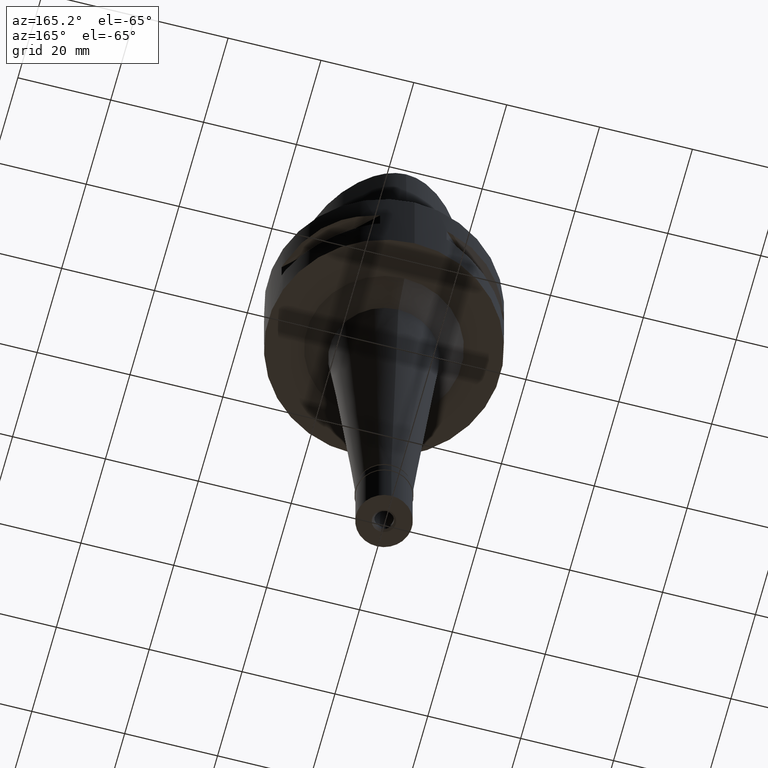
[diagram: clean part render]
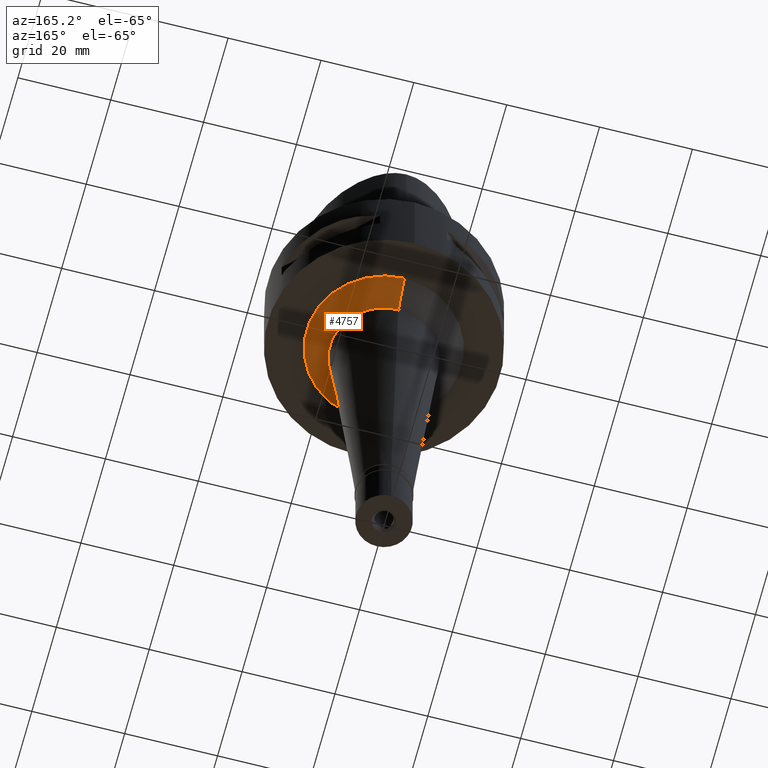
[diagram: same view with one face highlighted and labeled with its STEP entity id]
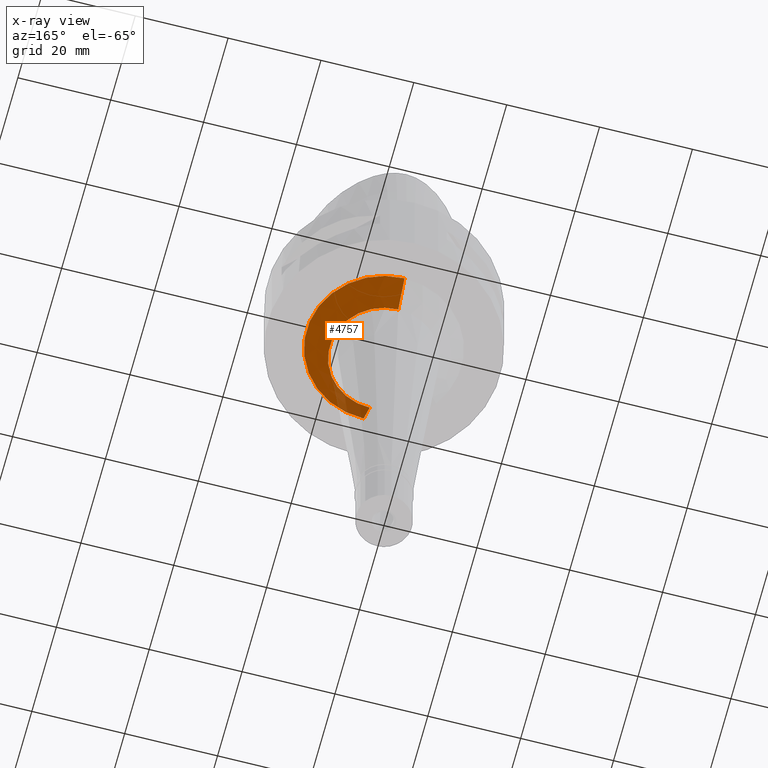
[diagram: x-ray of the same camera — body ghosted, the highlighted face saturated]
A machine part, auxiliary view. The second image highlights one B-rep face of the part: STEP entity #4757.
The next image is the same camera in x-ray: the body ghosted, the highlighted face saturated — about 10% of this face is hidden behind the body in this view.
In plain terms, the highlighted conical surface has half-angle 45 deg.
Its self-contained STEP definition (entity closure, byte-faithful):
#15 = EDGE_CURVE ( 'NONE', #1734, #3607, #1332, .T. ) ;
#102 = FACE_OUTER_BOUND ( 'NONE', #1408, .T. ) ;
#215 = VERTEX_POINT ( 'NONE', #2965 ) ;
#241 = DIRECTION ( 'NONE',  ( 0.0000000000000000000, -0.7071067811865474617, -0.7071067811865474617 ) ) ;
#385 = CONICAL_SURFACE ( 'NONE', #848, 14.16926539648000016, 0.7853981633972997312 ) ;
#402 = CARTESIAN_POINT ( 'NONE',  ( 0.0000000000000000000, 0.0000000000000000000, -20.00000000000000000 ) ) ;
#524 = ORIENTED_EDGE ( 'NONE', *, *, #3560, .F. ) ;
#568 = DIRECTION ( 'NONE',  ( 0.0000000000000000000, 0.0000000000000000000, 1.000000000000000000 ) ) ;
#636 = VERTEX_POINT ( 'NONE', #1588 ) ;
#848 = AXIS2_PLACEMENT_3D ( 'NONE', #3823, #568, #4205 ) ;
#865 = VECTOR ( 'NONE', #241, 1000.000000000000114 ) ;
#947 = ORIENTED_EDGE ( 'NONE', *, *, #4199, .T. ) ;
#1111 = CARTESIAN_POINT ( 'NONE',  ( 0.0000000000000000000, 0.0000000000000000000, -25.00000000000000000 ) ) ;
#1141 = CARTESIAN_POINT ( 'NONE',  ( 0.0000000000000000000, -11.66926539648000016, -25.00000000000000000 ) ) ;
#1221 = DIRECTION ( 'NONE',  ( 0.0000000000000000000, 1.000000000000000000, 0.0000000000000000000 ) ) ;
#1332 = LINE ( 'NONE', #2130, #4047 ) ;
#1408 = EDGE_LOOP ( 'NONE', ( #2810, #4728, #947, #524 ) ) ;
#1588 = CARTESIAN_POINT ( 'NONE',  ( 0.0000000000000000000, 11.66926539648000016, -25.00000000000000000 ) ) ;
#1734 = VERTEX_POINT ( 'NONE', #3484 ) ;
#1808 = CARTESIAN_POINT ( 'NONE',  ( 0.0000000000000000000, 16.66926539648000016, -20.00000000000000000 ) ) ;
#1816 = AXIS2_PLACEMENT_3D ( 'NONE', #402, #3031, #1221 ) ;
#1883 = CIRCLE ( 'NONE', #4574, 11.66926539648000016 ) ;
#1904 = DIRECTION ( 'NONE',  ( 0.0000000000000000000, -1.000000000000000000, 0.0000000000000000000 ) ) ;
#2130 = CARTESIAN_POINT ( 'NONE',  ( 0.0000000000000000000, -16.66926539648000016, -20.00000000000000000 ) ) ;
#2170 = DIRECTION ( 'NONE',  ( 0.0000000000000000000, 0.7071067811865474617, -0.7071067811865474617 ) ) ;
#2337 = EDGE_CURVE ( 'NONE', #215, #1734, #3670, .T. ) ;
#2810 = ORIENTED_EDGE ( 'NONE', *, *, #2337, .T. ) ;
#2965 = CARTESIAN_POINT ( 'NONE',  ( 0.0000000000000000000, 16.66926539648000016, -20.00000000000000000 ) ) ;
#3031 = DIRECTION ( 'NONE',  ( 0.0000000000000000000, 0.0000000000000000000, -1.000000000000000000 ) ) ;
#3484 = CARTESIAN_POINT ( 'NONE',  ( 0.0000000000000000000, -16.66926539648000016, -20.00000000000000000 ) ) ;
#3560 = EDGE_CURVE ( 'NONE', #215, #636, #3958, .T. ) ;
#3607 = VERTEX_POINT ( 'NONE', #1141 ) ;
#3670 = CIRCLE ( 'NONE', #1816, 16.66926539648000016 ) ;
#3823 = CARTESIAN_POINT ( 'NONE',  ( 0.0000000000000000000, 0.0000000000000000000, -22.50000000000000000 ) ) ;
#3958 = LINE ( 'NONE', #1808, #865 ) ;
#4047 = VECTOR ( 'NONE', #2170, 1000.000000000000114 ) ;
#4092 = DIRECTION ( 'NONE',  ( 0.0000000000000000000, 0.0000000000000000000, 1.000000000000000000 ) ) ;
#4199 = EDGE_CURVE ( 'NONE', #3607, #636, #1883, .T. ) ;
#4205 = DIRECTION ( 'NONE',  ( 0.0000000000000000000, 1.000000000000000000, 0.0000000000000000000 ) ) ;
#4574 = AXIS2_PLACEMENT_3D ( 'NONE', #1111, #4092, #1904 ) ;
#4728 = ORIENTED_EDGE ( 'NONE', *, *, #15, .T. ) ;
#4757 = ADVANCED_FACE ( 'NONE', ( #102 ), #385, .T. ) ;